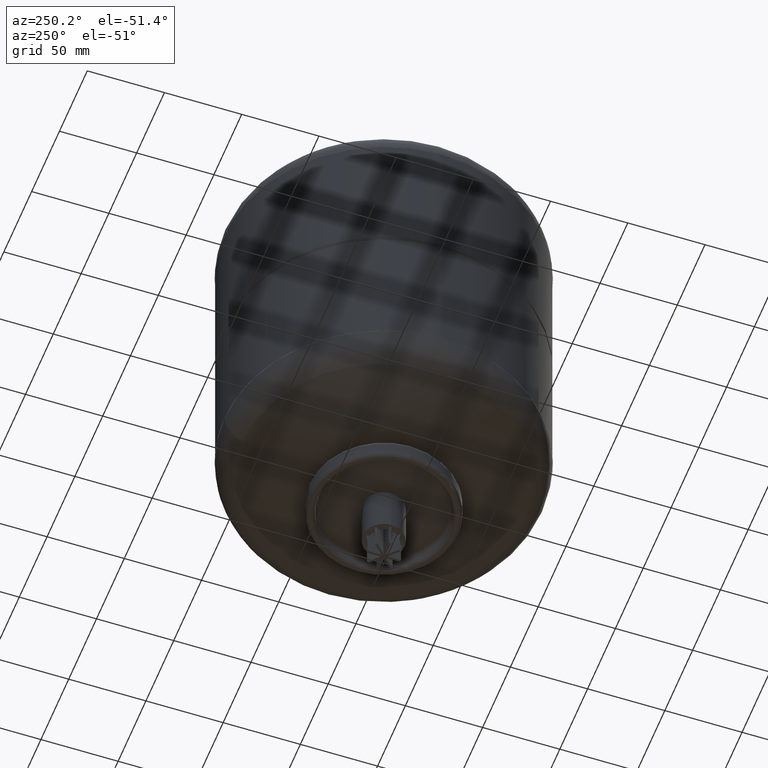
[diagram: clean part render]
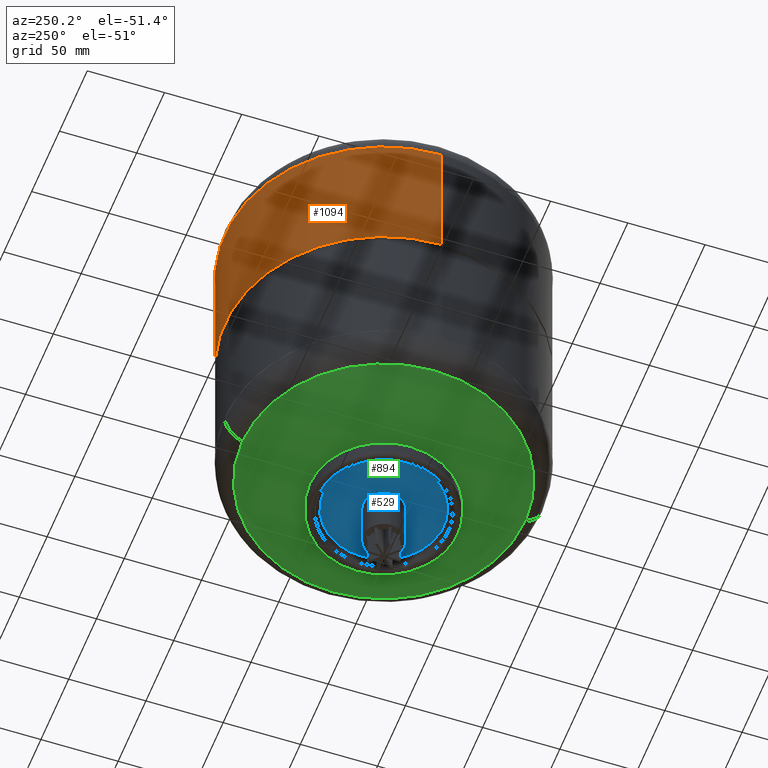
[diagram: same view with three faces highlighted in distinct colors, each labeled with its STEP entity id]
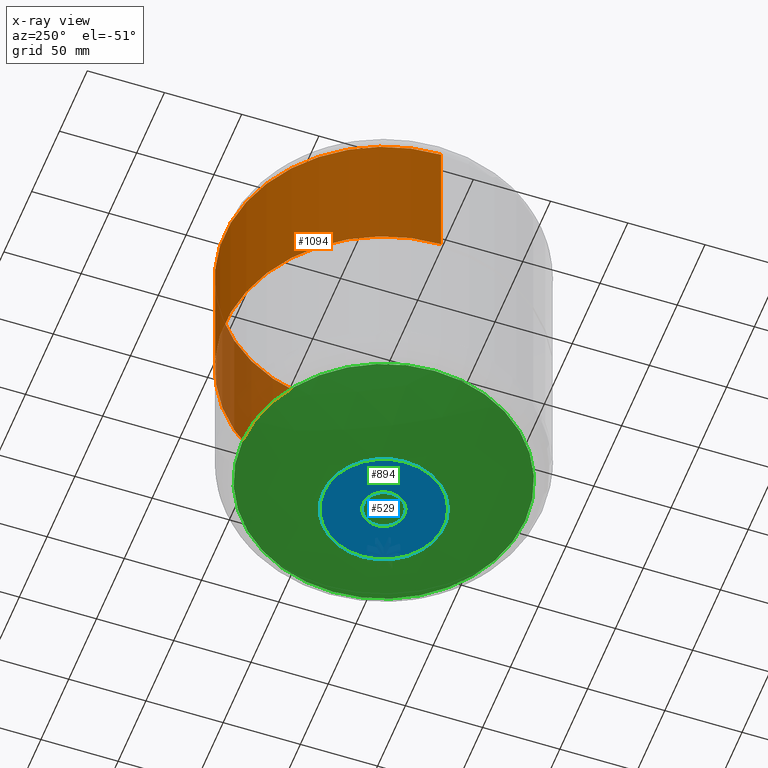
[diagram: x-ray of the same camera — body ghosted, the three highlighted faces saturated]
A machine part, auxiliary view with three faces highlighted in distinct colors.
The next image is the same camera in x-ray (body ghosted, the three faces saturated) — at least one of them is partly hidden behind the body in this view.
Their STEP definitions:

[orange] entity #1094 — the highlighted cylindrical surface (partial cylindrical patch) has radius 103 mm, axis along (0, 0, 1).
#950=CARTESIAN_POINT('',(102.999999999999970,0.0,183.499999999999970));
#951=VERTEX_POINT('',#950);
#960=CARTESIAN_POINT('',(-102.999999999999990,-1.261345E-014,183.499999999999970));
#961=VERTEX_POINT('',#960);
#1034=CARTESIAN_POINT('',(102.999999999999990,0.0,271.000000000000060));
#1035=VERTEX_POINT('',#1034);
#1036=CARTESIAN_POINT('',(102.999999999999990,0.0,271.000000000000060));
#1037=DIRECTION('',(0.0,0.0,-1.0));
#1038=VECTOR('',#1037,87.500000000000085);
#1039=LINE('',#1036,#1038);
#1040=EDGE_CURVE('',#1035,#951,#1039,.T.);
#1042=CARTESIAN_POINT('',(-102.999999999999990,-1.261345E-014,271.000000000000060));
#1043=VERTEX_POINT('',#1042);
#1051=CARTESIAN_POINT('',(-102.999999999999990,-1.261345E-014,271.000000000000060));
#1052=DIRECTION('',(0.0,0.0,-1.0));
#1053=VECTOR('',#1052,87.500000000000085);
#1054=LINE('',#1051,#1053);
#1055=EDGE_CURVE('',#1043,#961,#1054,.T.);
#1067=CARTESIAN_POINT('',(0.0,0.0,271.000000000000060));
#1068=DIRECTION('',(0.0,0.0,1.0));
#1069=DIRECTION('',(1.0,0.0,0.0));
#1070=AXIS2_PLACEMENT_3D('',#1067,#1068,#1069);
#1071=CIRCLE('',#1070,102.999999999999990);
#1072=EDGE_CURVE('',#1035,#1043,#1071,.T.);
#1077=CARTESIAN_POINT('',(0.0,0.0,230.500000000000000));
#1078=DIRECTION('',(0.0,0.0,1.0));
#1079=DIRECTION('',(1.0,0.0,0.0));
#1080=AXIS2_PLACEMENT_3D('',#1077,#1078,#1079);
#1081=CYLINDRICAL_SURFACE('',#1080,102.999999999999990);
#1082=ORIENTED_EDGE('',*,*,#1040,.T.);
#1083=CARTESIAN_POINT('',(0.0,0.0,183.499999999999970));
#1084=DIRECTION('',(0.0,0.0,1.0));
#1085=DIRECTION('',(1.0,0.0,0.0));
#1086=AXIS2_PLACEMENT_3D('',#1083,#1084,#1085);
#1087=CIRCLE('',#1086,102.999999999999970);
#1088=EDGE_CURVE('',#951,#961,#1087,.T.);
#1089=ORIENTED_EDGE('',*,*,#1088,.T.);
#1090=ORIENTED_EDGE('',*,*,#1055,.F.);
#1091=ORIENTED_EDGE('',*,*,#1072,.F.);
#1092=EDGE_LOOP('',(#1082,#1089,#1090,#1091));
#1093=FACE_OUTER_BOUND('',#1092,.T.);
#1094=ADVANCED_FACE('',(#1093),#1081,.T.);

[blue] entity #529 — the highlighted planar face has unit normal (0, 0, -1).
#275=CARTESIAN_POINT('',(13.449999999999999,0.0,45.999999999999986));
#276=VERTEX_POINT('',#275);
#285=CARTESIAN_POINT('',(-13.449999999999999,1.647096E-015,45.999999999999993));
#286=VERTEX_POINT('',#285);
#287=CARTESIAN_POINT('',(0.0,0.0,45.999999999999993));
#288=DIRECTION('',(0.0,0.0,-1.0));
#289=DIRECTION('',(1.0,0.0,0.0));
#290=AXIS2_PLACEMENT_3D('',#287,#288,#289);
#291=CIRCLE('',#290,13.449999999999999);
#292=EDGE_CURVE('',#276,#286,#291,.T.);
#409=CARTESIAN_POINT('',(-39.000000000000007,3.136209E-016,46.0));
#410=VERTEX_POINT('',#409);
#436=CARTESIAN_POINT('',(39.000000000000007,-4.462344E-015,46.0));
#437=VERTEX_POINT('',#436);
#445=CARTESIAN_POINT('',(0.0,39.0,46.0));
#446=VERTEX_POINT('',#445);
#447=CARTESIAN_POINT('',(0.0,0.0,46.0));
#448=DIRECTION('',(0.0,0.0,-1.0));
#449=DIRECTION('',(0.0,1.0,0.0));
#450=AXIS2_PLACEMENT_3D('',#447,#448,#449);
#451=CIRCLE('',#450,39.000000000000007);
#452=EDGE_CURVE('',#446,#437,#451,.T.);
#454=CARTESIAN_POINT('',(0.0,0.0,46.0));
#455=DIRECTION('',(0.0,0.0,-1.0));
#456=DIRECTION('',(0.0,1.0,0.0));
#457=AXIS2_PLACEMENT_3D('',#454,#455,#456);
#458=CIRCLE('',#457,39.000000000000007);
#459=EDGE_CURVE('',#410,#446,#458,.T.);
#503=CARTESIAN_POINT('',(0.0,19.500000000000000,45.999999999999993));
#504=DIRECTION('',(0.0,0.0,-1.0));
#505=DIRECTION('',(-1.0,0.0,0.0));
#506=AXIS2_PLACEMENT_3D('',#503,#504,#505);
#507=PLANE('',#506);
#508=ORIENTED_EDGE('',*,*,#452,.T.);
#509=CARTESIAN_POINT('',(0.0,0.0,46.0));
#510=DIRECTION('',(0.0,0.0,-1.0));
#511=DIRECTION('',(0.0,1.0,0.0));
#512=AXIS2_PLACEMENT_3D('',#509,#510,#511);
#513=CIRCLE('',#512,39.000000000000007);
#514=EDGE_CURVE('',#437,#410,#513,.T.);
#515=ORIENTED_EDGE('',*,*,#514,.T.);
#516=ORIENTED_EDGE('',*,*,#459,.T.);
#517=EDGE_LOOP('',(#508,#515,#516));
#518=FACE_OUTER_BOUND('',#517,.T.);
#519=CARTESIAN_POINT('',(0.0,0.0,45.999999999999993));
#520=DIRECTION('',(0.0,0.0,-1.0));
#521=DIRECTION('',(1.0,0.0,0.0));
#522=AXIS2_PLACEMENT_3D('',#519,#520,#521);
#523=CIRCLE('',#522,13.449999999999999);
#524=EDGE_CURVE('',#286,#276,#523,.T.);
#525=ORIENTED_EDGE('',*,*,#524,.F.);
#526=ORIENTED_EDGE('',*,*,#292,.F.);
#527=EDGE_LOOP('',(#525,#526));
#528=FACE_BOUND('',#527,.T.);
#529=ADVANCED_FACE('',(#518,#528),#507,.T.);

[green] entity #894 — the highlighted spherical surface has radius 207 mm.
#833=CARTESIAN_POINT('',(0.0,-91.568364611260066,73.354545968883656));
#834=VERTEX_POINT('',#833);
#850=CARTESIAN_POINT('',(-1.121352E-014,91.568364611260066,73.354545968883684));
#851=VERTEX_POINT('',#850);
#859=CARTESIAN_POINT('',(-91.568364611260066,3.425114E-015,73.354545968883670));
#860=VERTEX_POINT('',#859);
#861=CARTESIAN_POINT('',(0.0,3.425114E-015,73.354545968883670));
#862=DIRECTION('',(0.0,0.0,1.0));
#863=DIRECTION('',(-1.0,0.0,0.0));
#864=AXIS2_PLACEMENT_3D('',#861,#862,#863);
#865=CIRCLE('',#864,91.568364611260066);
#866=EDGE_CURVE('',#851,#860,#865,.T.);
#868=CARTESIAN_POINT('',(0.0,3.425114E-015,73.354545968883670));
#869=DIRECTION('',(0.0,0.0,1.0));
#870=DIRECTION('',(-1.0,0.0,0.0));
#871=AXIS2_PLACEMENT_3D('',#868,#869,#870);
#872=CIRCLE('',#871,91.568364611260066);
#873=EDGE_CURVE('',#860,#834,#872,.T.);
#878=CARTESIAN_POINT('',(-2.660593E-014,-3.067740E-014,259.000000000000060));
#879=DIRECTION('',(0.0,-1.0,0.0));
#880=DIRECTION('',(1.0,0.0,0.0));
#881=AXIS2_PLACEMENT_3D('',#878,#879,#880);
#882=SPHERICAL_SURFACE('',#881,207.000000000000060);
#883=ORIENTED_EDGE('',*,*,#873,.F.);
#884=ORIENTED_EDGE('',*,*,#866,.F.);
#885=CARTESIAN_POINT('',(0.0,3.425114E-015,73.354545968883670));
#886=DIRECTION('',(0.0,0.0,1.0));
#887=DIRECTION('',(-1.0,0.0,0.0));
#888=AXIS2_PLACEMENT_3D('',#885,#886,#887);
#889=CIRCLE('',#888,91.568364611260066);
#890=EDGE_CURVE('',#834,#851,#889,.T.);
#891=ORIENTED_EDGE('',*,*,#890,.F.);
#892=EDGE_LOOP('',(#883,#884,#891));
#893=FACE_OUTER_BOUND('',#892,.T.);
#894=ADVANCED_FACE('',(#893),#882,.T.);